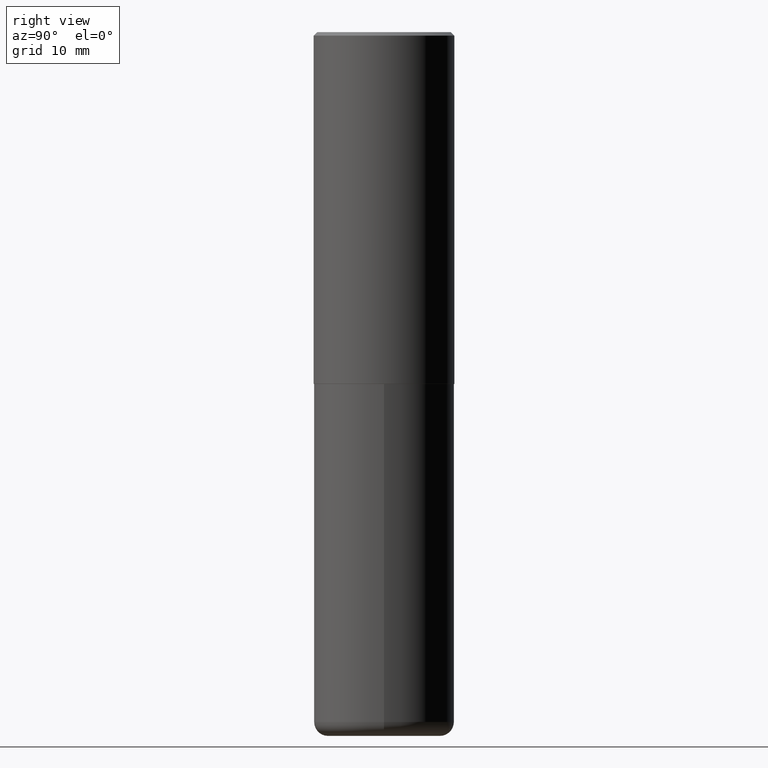
[diagram: clean part render]
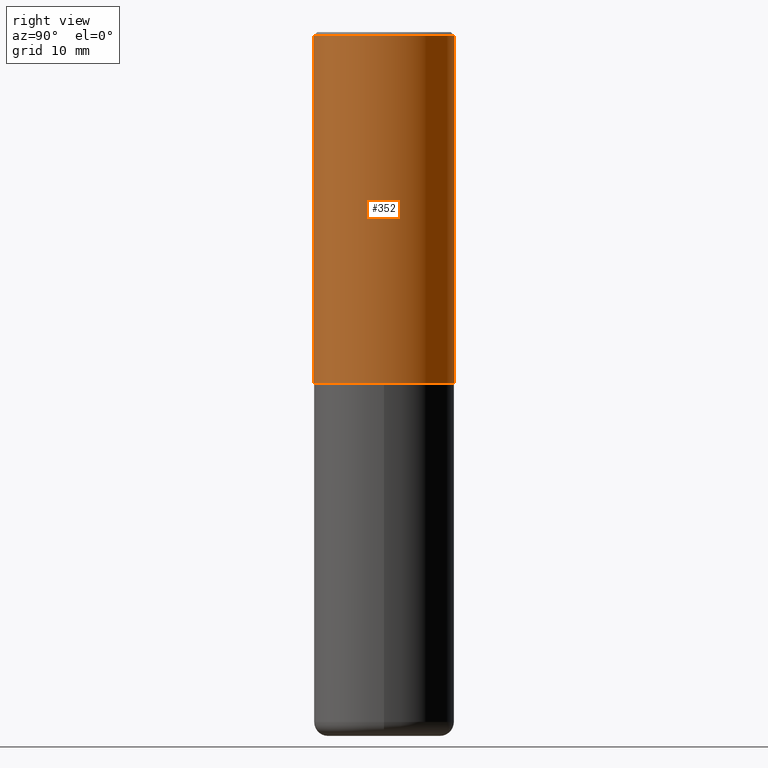
[diagram: same view with one face highlighted and labeled with its STEP entity id]
A machine part, right view. The second image highlights one B-rep face of the part: STEP entity #352.
In plain terms, the highlighted cylindrical surface (partial cylindrical patch) has radius 10 mm, axis along (-0, 0, 1).
Its self-contained STEP definition (entity closure, byte-faithful):
#11 = VERTEX_POINT ( 'NONE', #263 ) ;
#21 = DIRECTION ( 'NONE',  ( -6.982962677686265922E-15, -1.000000000000000000, 3.487996385144809360E-15 ) ) ;
#40 = VERTEX_POINT ( 'NONE', #409 ) ;
#43 = VERTEX_POINT ( 'NONE', #407 ) ;
#44 = AXIS2_PLACEMENT_3D ( 'NONE', #109, #401, #114 ) ;
#46 = EDGE_CURVE ( 'NONE', #40, #43, #216, .T. ) ;
#64 = VECTOR ( 'NONE', #145, 39.37007874015748143 ) ;
#77 = DIRECTION ( 'NONE',  ( -2.447902336346030930E-29, 3.487996385144809755E-15, 1.000000000000000000 ) ) ;
#82 = EDGE_LOOP ( 'NONE', ( #238, #226, #337, #290 ) ) ;
#84 = CARTESIAN_POINT ( 'NONE',  ( 4.895804672692082949E-31, -6.975992770289649092E-17, -0.02000000000000008715 ) ) ;
#87 = FACE_OUTER_BOUND ( 'NONE', #82, .T. ) ;
#94 = CIRCLE ( 'NONE', #44, 0.3937000000000002720 ) ;
#109 = CARTESIAN_POINT ( 'NONE',  ( 4.816247846760815671E-29, -6.862632887772413316E-15, -1.967500000000000027 ) ) ;
#114 = DIRECTION ( 'NONE',  ( -6.982962677686265922E-15, -1.000000000000000000, 3.469453890861393601E-15 ) ) ;
#116 = CARTESIAN_POINT ( 'NONE',  ( -2.700978061722651647E-15, -0.3937000000000001609, -0.01999999999999870978 ) ) ;
#145 = DIRECTION ( 'NONE',  ( -2.447902336346030930E-29, 3.487996385144809360E-15, 1.000000000000000000 ) ) ;
#153 = DIRECTION ( 'NONE',  ( -2.447902336346030930E-29, 3.487996385144809360E-15, 1.000000000000000000 ) ) ;
#154 = DIRECTION ( 'NONE',  ( -2.447902336346030930E-29, 3.487996385144809755E-15, 1.000000000000000000 ) ) ;
#181 = CARTESIAN_POINT ( 'NONE',  ( -2.749192406205084400E-15, -0.3937000000000002164, 1.373224176831512262E-15 ) ) ;
#185 = EDGE_CURVE ( 'NONE', #11, #40, #94, .T. ) ;
#205 = CYLINDRICAL_SURFACE ( 'NONE', #398, 0.3937000000000002164 ) ;
#216 = LINE ( 'NONE', #247, #222 ) ;
#222 = VECTOR ( 'NONE', #153, 39.37007874015748143 ) ;
#226 = ORIENTED_EDGE ( 'NONE', *, *, #46, .T. ) ;
#238 = ORIENTED_EDGE ( 'NONE', *, *, #185, .T. ) ;
#242 = CARTESIAN_POINT ( 'NONE',  ( 0.000000000000000000, 0.000000000000000000, 0.000000000000000000 ) ) ;
#247 = CARTESIAN_POINT ( 'NONE',  ( 2.797406750687515575E-15, 0.3937000000000002164, -1.373224176831512262E-15 ) ) ;
#263 = CARTESIAN_POINT ( 'NONE',  ( -2.749192406205036674E-15, -0.3937000000000070998, -1.967499999999998694 ) ) ;
#288 = VERTEX_POINT ( 'NONE', #116 ) ;
#290 = ORIENTED_EDGE ( 'NONE', *, *, #322, .F. ) ;
#292 = EDGE_CURVE ( 'NONE', #288, #43, #326, .T. ) ;
#322 = EDGE_CURVE ( 'NONE', #11, #288, #332, .T. ) ;
#326 = CIRCLE ( 'NONE', #369, 0.3937000000000001054 ) ;
#332 = LINE ( 'NONE', #181, #64 ) ;
#337 = ORIENTED_EDGE ( 'NONE', *, *, #292, .F. ) ;
#352 = ADVANCED_FACE ( 'NONE', ( #87 ), #205, .T. ) ;
#369 = AXIS2_PLACEMENT_3D ( 'NONE', #84, #77, #371 ) ;
#371 = DIRECTION ( 'NONE',  ( -6.982962677686265133E-15, -1.000000000000000000, 3.491137977679279029E-15 ) ) ;
#398 = AXIS2_PLACEMENT_3D ( 'NONE', #242, #154, #21 ) ;
#401 = DIRECTION ( 'NONE',  ( -2.447902336346030930E-29, 3.487996385144809755E-15, 1.000000000000000000 ) ) ;
#407 = CARTESIAN_POINT ( 'NONE',  ( 2.749192406205084005E-15, 0.3937000000000000499, -0.02000000000000146105 ) ) ;
#409 = CARTESIAN_POINT ( 'NONE',  ( 2.797406750687540424E-15, 0.3936999999999934441, -1.967500000000001359 ) ) ;